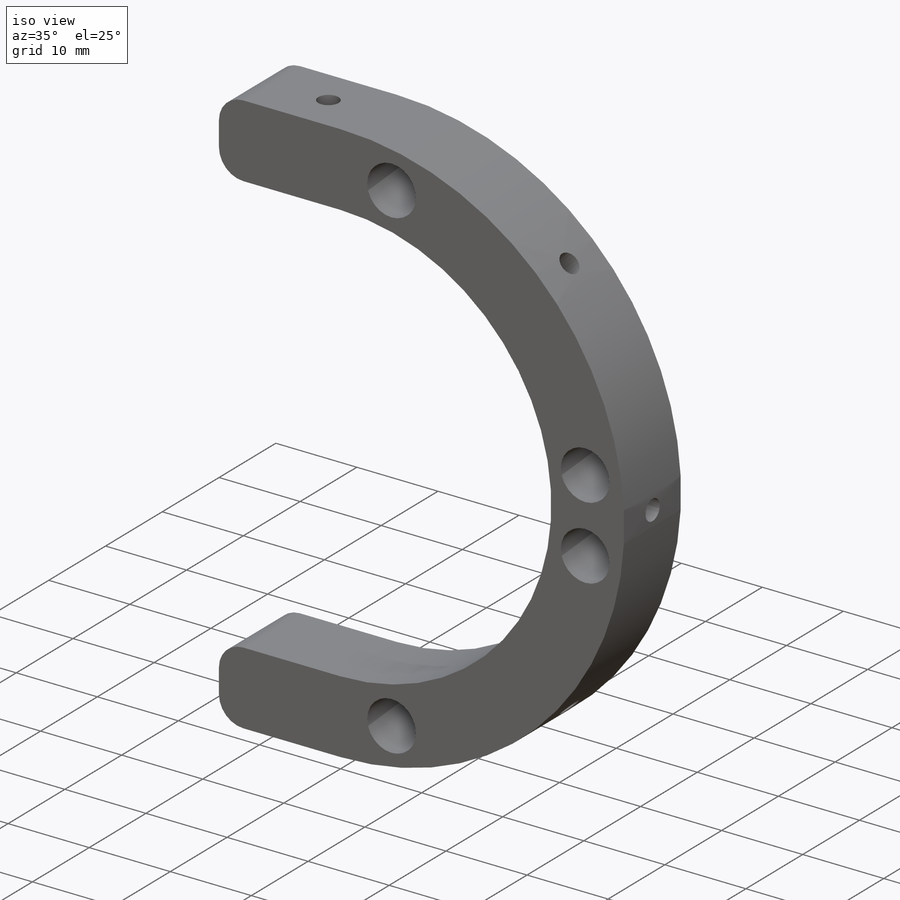
[diagram: iso view]
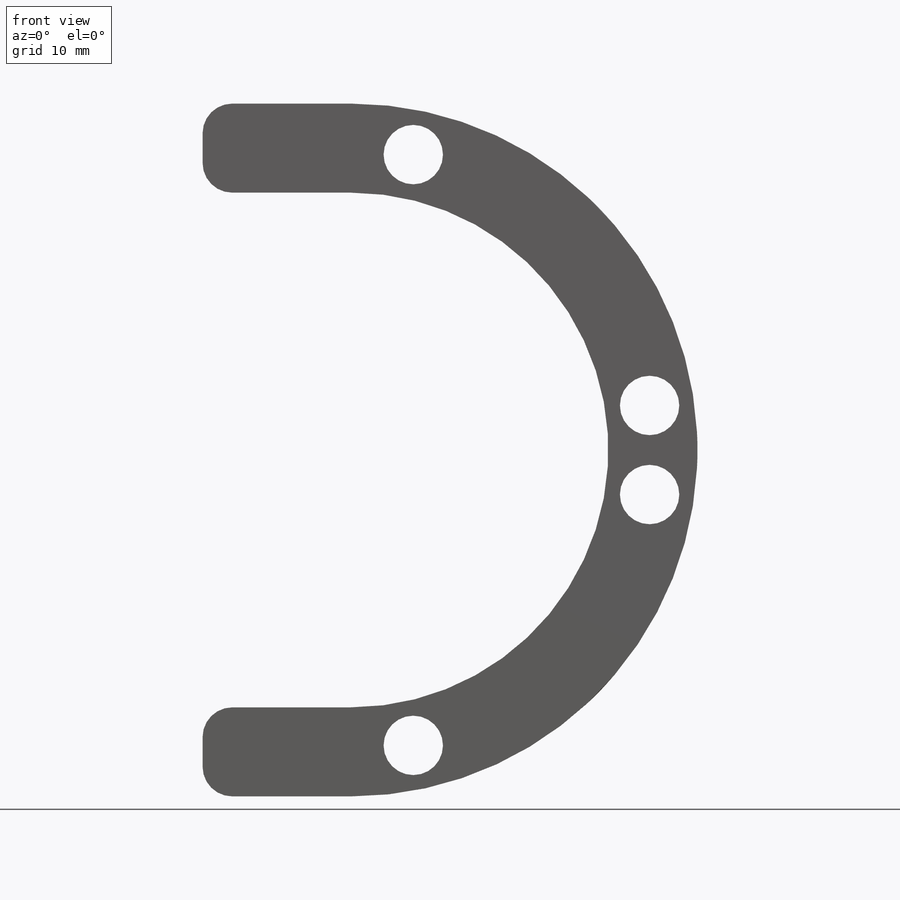
[diagram: front view]
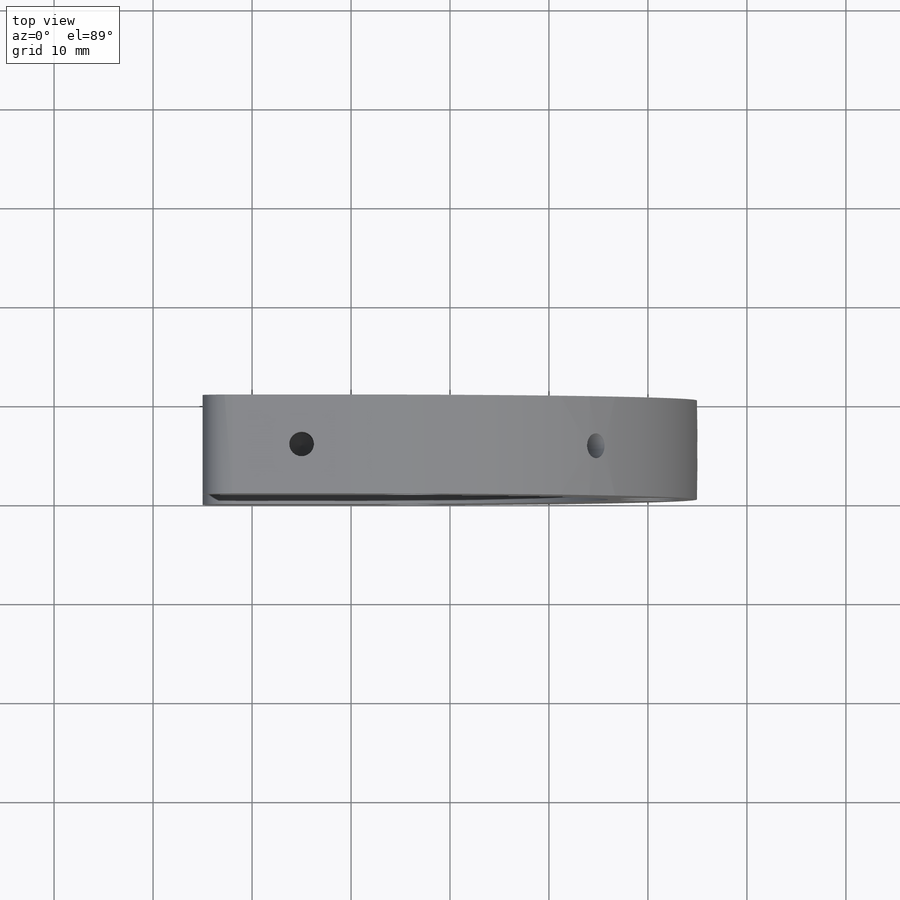
[diagram: top view]
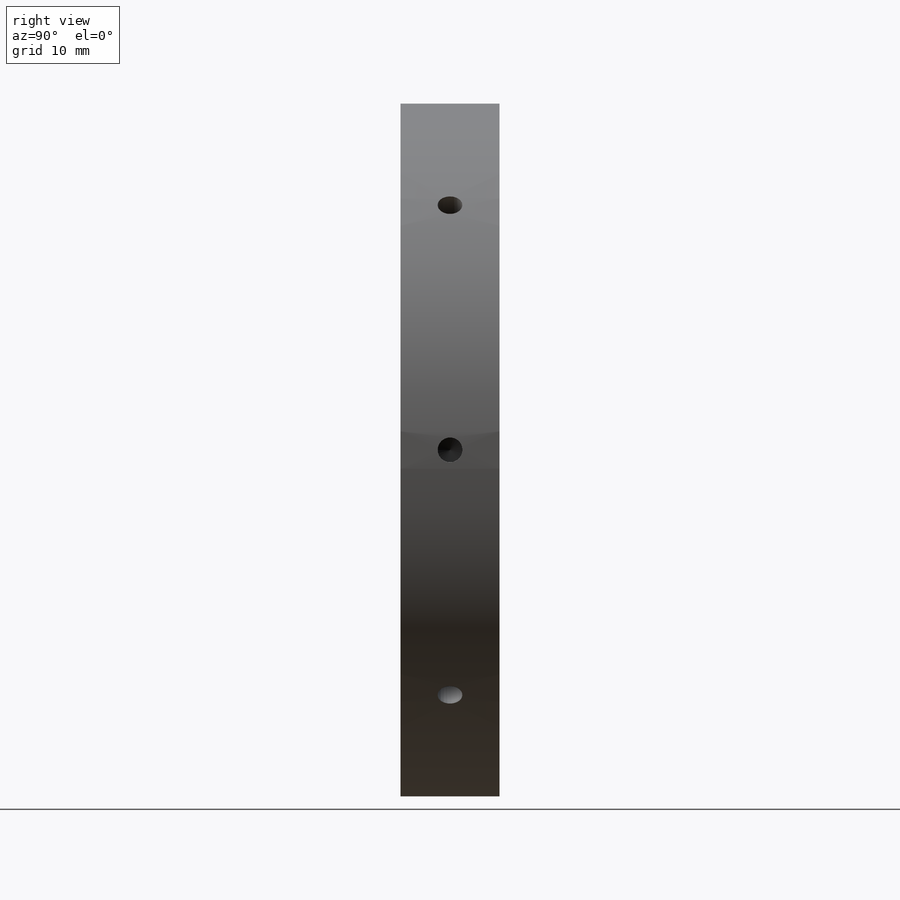
[diagram: right view]
SOLIDWORKS PART (.sldprt)
format: sldprt  version: not decoded by parser v0  size: 336,384 bytes
history: native  units: mm
features: sketch x7, thread x3, hole x2, pattern_circular x2, material x1, extrude x1, fillet x1, plane x1 (+12 scaffold rows collapsed)
feature tree (30):
  scaffold x12  (default folders/planes/origin — collapsed)
  material  "7050-T73510"
  sketch  "Sketch1"  dims[c1.D1=70.0mm c1.D2=24.0mm c1.D3=6.0mm c1.D4=6.0mm c2.D2=35.0mm c2.D4=~26.188083mm c2.D5=6.0mm c2.D6=6.0mm c2.D7=6.0mm c3.D2=~26.22301mm c3.D3=~29.090367mm c4.D2=9.0mm c4.D4=4.5mm c4.D8=9.0mm c4.D9=34.82mm c4.D10=50.0mm c4.D11=15.0mm c4.D12=~9.132715mm]
  extrude  "Boss-Extrude1"  Depth=10mm
  fillet  "Fillet1"  Radius=3mm
  sketch  "Sketch12"  dims[D1=~190.235971mm]
  sketch  "Sketch13"  dims[D1=~0.043515mm]
  plane  "Plane1"
  hole  "M3 Tapped Hole3"  Diameter=2.5mm Depth=7.5mm
  sketch  "Sketch15"  dims[D1=5.0mm D2=0.0mm]
  sketch  "Sketch14"  dims[hole-wizard template sketch: 50 standard entries collapsed; hole parameters above]
  thread  "Hole Thread3"  Diameter=7.5mm  [1 undecoded]
  pattern_circular  "CirPattern1"  Count=2 Angle=45deg
  pattern_circular  "CirPattern2"  Count=2 Angle=45deg
  hole  "M3 Tapped Hole4"  Diameter=2.5mm Depth=7.5mm
  sketch  "3DSketch1"  dims[c1.D1=10.0mm c1.D2=10.0mm c1.D3=5.0mm c1.D4=10.0mm c1.D5=10.0mm c2.D4=5.0mm]
  sketch  "Sketch16"  dims[hole-wizard template sketch: 50 standard entries collapsed; hole parameters above]
  thread  "Hole Thread4"  Diameter=6mm  [1 undecoded]
  thread  "Hole Thread5"  Diameter=6mm  [1 undecoded]
decode coverage: 16 of 16 modeling features carry decoded parameters
note: ~ marks probable driven/reference dimensions
note: 3 parameter values undecoded
note: suppression state not decoded; provenance and decode notes live in map.json
